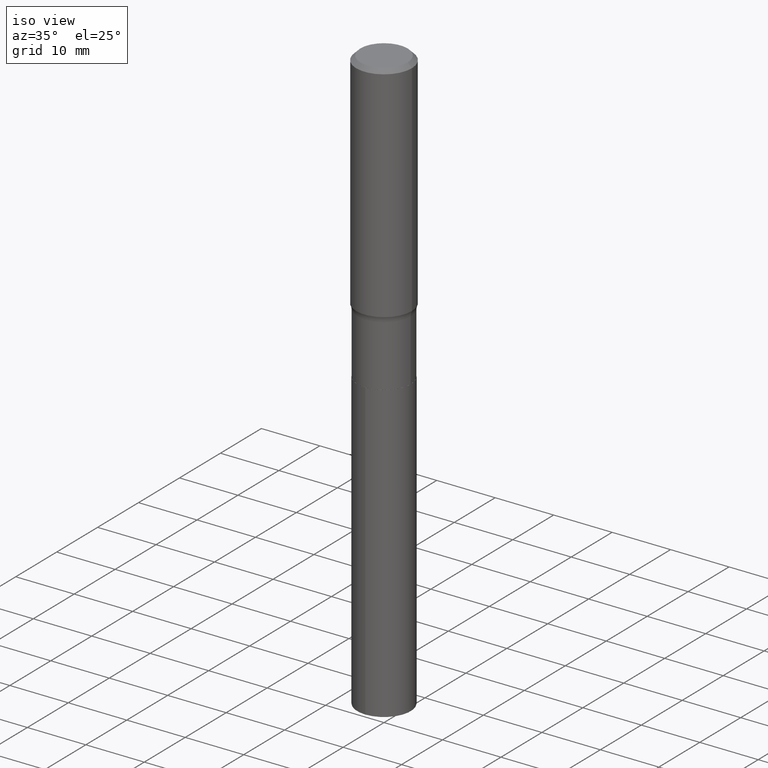
[diagram: clean part render]
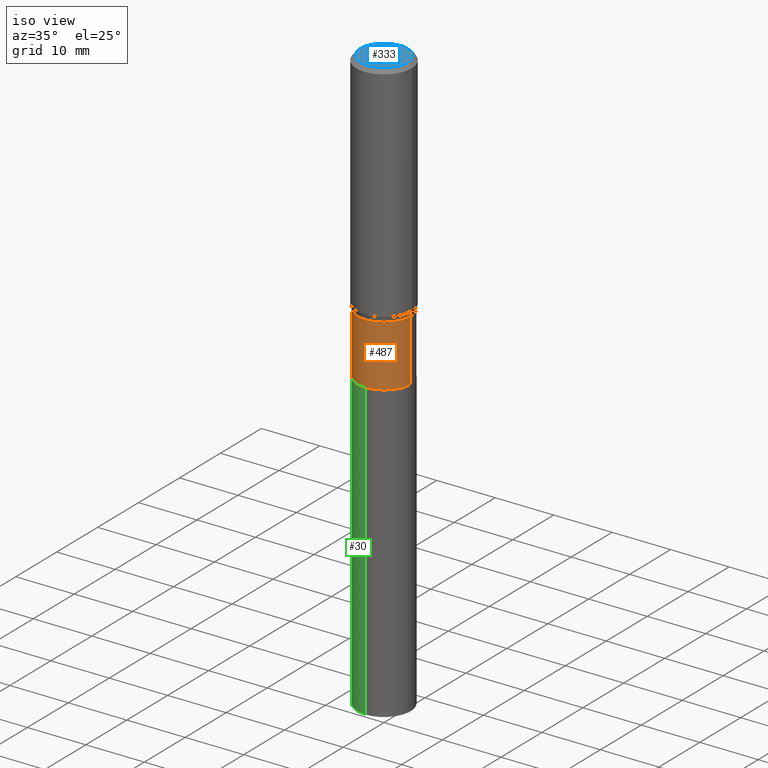
[diagram: same view with three faces highlighted in distinct colors, each labeled with its STEP entity id]
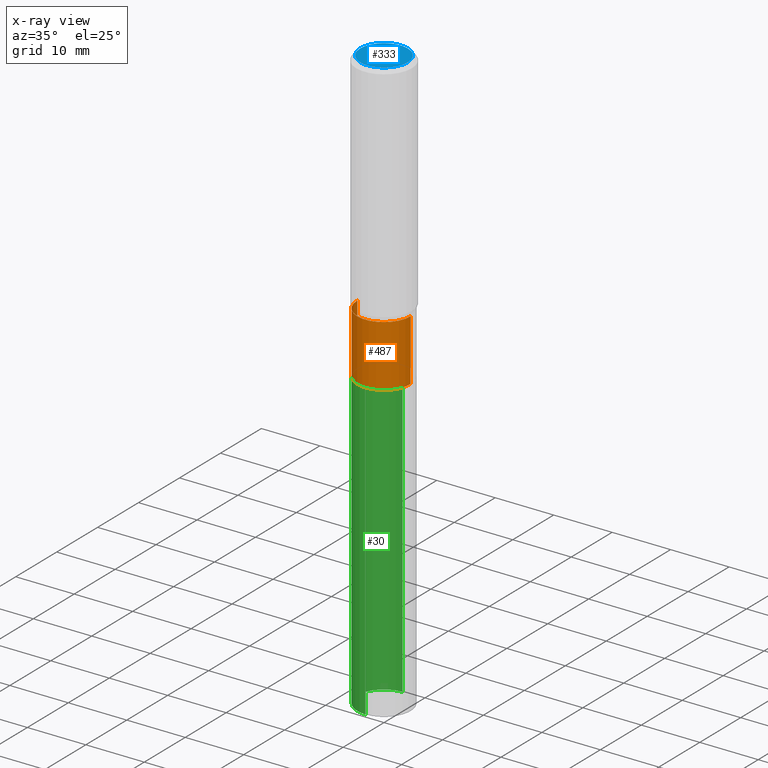
[diagram: x-ray of the same camera — body ghosted, the three highlighted faces saturated]
A machine part, iso view with three faces highlighted in distinct colors.
The next image is the same camera in x-ray (body ghosted, the three faces saturated) — at least one of them is partly hidden behind the body in this view.
Their STEP definitions:

[orange] entity #487 — the highlighted cylindrical surface (edge-blend (fillet) strip) has radius 4.5644 mm, axis along (-0, 0, 1).
#12 = CARTESIAN_POINT ( 'NONE',  ( 3.765777414644491171E-29, -5.376532113684559684E-15, -1.539899999999999824 ) ) ;
#15 = CARTESIAN_POINT ( 'NONE',  ( 0.1796999999999999709, -6.631370506864782203E-15, -1.539899999999999824 ) ) ;
#32 = ORIENTED_EDGE ( 'NONE', *, *, #407, .F. ) ;
#46 = DIRECTION ( 'NONE',  ( 1.000000000000000000, -6.982962677686265922E-15, 4.876176775795935232E-29 ) ) ;
#59 = ORIENTED_EDGE ( 'NONE', *, *, #176, .F. ) ;
#63 = VERTEX_POINT ( 'NONE', #15 ) ;
#85 = CARTESIAN_POINT ( 'NONE',  ( 0.000000000000000000, 0.000000000000000000, 0.000000000000000000 ) ) ;
#86 = CARTESIAN_POINT ( 'NONE',  ( -0.1796999999999999709, -4.820328565860884929E-15, -1.539899999999999824 ) ) ;
#94 = CARTESIAN_POINT ( 'NONE',  ( -0.1796999999999999986, -4.820328565860884929E-15, -1.952699999999999880 ) ) ;
#103 = VECTOR ( 'NONE', #293, 39.37007874015748143 ) ;
#105 = EDGE_CURVE ( 'NONE', #454, #63, #153, .T. ) ;
#120 = DIRECTION ( 'NONE',  ( 1.000000000000000000, -6.982962677686269077E-15, 0.000000000000000000 ) ) ;
#153 = LINE ( 'NONE', #232, #103 ) ;
#176 = EDGE_CURVE ( 'NONE', #446, #368, #257, .T. ) ;
#219 = AXIS2_PLACEMENT_3D ( 'NONE', #12, #464, #120 ) ;
#226 = AXIS2_PLACEMENT_3D ( 'NONE', #391, #278, #387 ) ;
#229 = DIRECTION ( 'NONE',  ( -2.445468806185136877E-29, 3.491481338843145188E-15, 1.000000000000000000 ) ) ;
#232 = CARTESIAN_POINT ( 'NONE',  ( 0.1796999999999999986, -1.254838393180221928E-15, 8.762489666105295644E-30 ) ) ;
#251 = CIRCLE ( 'NONE', #219, 0.1796999999999999709 ) ;
#257 = LINE ( 'NONE', #410, #345 ) ;
#260 = EDGE_LOOP ( 'NONE', ( #59, #287, #332, #32 ) ) ;
#273 = FACE_OUTER_BOUND ( 'NONE', #260, .T. ) ;
#276 = AXIS2_PLACEMENT_3D ( 'NONE', #85, #463, #46 ) ;
#278 = DIRECTION ( 'NONE',  ( -2.445468806185136597E-29, 3.491481338843145583E-15, 1.000000000000000000 ) ) ;
#283 = CIRCLE ( 'NONE', #226, 0.1796999999999999986 ) ;
#287 = ORIENTED_EDGE ( 'NONE', *, *, #481, .T. ) ;
#293 = DIRECTION ( 'NONE',  ( -2.445468806185136877E-29, 3.491481338843145188E-15, 1.000000000000000000 ) ) ;
#332 = ORIENTED_EDGE ( 'NONE', *, *, #105, .T. ) ;
#345 = VECTOR ( 'NONE', #229, 39.37007874015748143 ) ;
#368 = VERTEX_POINT ( 'NONE', #86 ) ;
#387 = DIRECTION ( 'NONE',  ( 1.000000000000000000, -6.982962677686267499E-15, 0.000000000000000000 ) ) ;
#391 = CARTESIAN_POINT ( 'NONE',  ( 4.775266937837715922E-29, -6.817815610359009828E-15, -1.952699999999999880 ) ) ;
#392 = CARTESIAN_POINT ( 'NONE',  ( 0.1796999999999999986, -8.072654003539231558E-15, -1.952699999999999880 ) ) ;
#407 = EDGE_CURVE ( 'NONE', #368, #63, #251, .T. ) ;
#410 = CARTESIAN_POINT ( 'NONE',  ( -0.1796999999999999986, 1.276845296160900024E-15, -8.839326357188065585E-30 ) ) ;
#431 = CYLINDRICAL_SURFACE ( 'NONE', #276, 0.1796999999999999986 ) ;
#446 = VERTEX_POINT ( 'NONE', #94 ) ;
#454 = VERTEX_POINT ( 'NONE', #392 ) ;
#463 = DIRECTION ( 'NONE',  ( -2.445468806185136597E-29, 3.491481338843145583E-15, 1.000000000000000000 ) ) ;
#464 = DIRECTION ( 'NONE',  ( -2.445468806185136597E-29, 3.491481338843145583E-15, 1.000000000000000000 ) ) ;
#481 = EDGE_CURVE ( 'NONE', #446, #454, #283, .T. ) ;
#487 = ADVANCED_FACE ( 'NONE', ( #273 ), #431, .T. ) ;

[blue] entity #333 — the highlighted planar face has unit normal (0, -0, -1).
#20 = FACE_OUTER_BOUND ( 'NONE', #488, .T. ) ;
#21 = DIRECTION ( 'NONE',  ( 1.000000000000000000, -6.982962677686267499E-15, 4.876227444496879000E-29 ) ) ;
#53 = AXIS2_PLACEMENT_3D ( 'NONE', #144, #348, #72 ) ;
#62 = AXIS2_PLACEMENT_3D ( 'NONE', #127, #281, #21 ) ;
#72 = DIRECTION ( 'NONE',  ( 1.000000000000000000, -6.982962677686267499E-15, 4.876227444496879000E-29 ) ) ;
#74 = CIRCLE ( 'NONE', #53, 0.1593749999999999889 ) ;
#95 = CARTESIAN_POINT ( 'NONE',  ( -0.1593749999999999889, 1.162008633083729827E-15, 3.252968060227205293E-18 ) ) ;
#115 = PLANE ( 'NONE',  #274 ) ;
#127 = CARTESIAN_POINT ( 'NONE',  ( -7.955031918821655674E-47, 1.135767727816384611E-32, 3.252968060235159768E-18 ) ) ;
#136 = EDGE_CURVE ( 'NONE', #224, #449, #74, .T. ) ;
#144 = CARTESIAN_POINT ( 'NONE',  ( -7.955031918821655674E-47, 1.135767727816384611E-32, 3.252968060235159768E-18 ) ) ;
#215 = ORIENTED_EDGE ( 'NONE', *, *, #297, .T. ) ;
#224 = VERTEX_POINT ( 'NONE', #95 ) ;
#241 = CARTESIAN_POINT ( 'NONE',  ( 0.1593749999999999889, -1.238966577815981903E-15, 3.252968060243383104E-18 ) ) ;
#265 = DIRECTION ( 'NONE',  ( -1.000000000000000000, 6.982962677686265922E-15, -4.876176775795935793E-29 ) ) ;
#269 = CARTESIAN_POINT ( 'NONE',  ( -3.977515959410827837E-47, 5.678838639081923055E-33, 1.626484030117579884E-18 ) ) ;
#274 = AXIS2_PLACEMENT_3D ( 'NONE', #269, #458, #265 ) ;
#281 = DIRECTION ( 'NONE',  ( -2.445468806185136597E-29, 3.491481338843145583E-15, 1.000000000000000000 ) ) ;
#297 = EDGE_CURVE ( 'NONE', #449, #224, #320, .T. ) ;
#320 = CIRCLE ( 'NONE', #62, 0.1593749999999999889 ) ;
#333 = ADVANCED_FACE ( 'NONE', ( #20 ), #115, .F. ) ;
#348 = DIRECTION ( 'NONE',  ( -2.445468806185136597E-29, 3.491481338843145583E-15, 1.000000000000000000 ) ) ;
#449 = VERTEX_POINT ( 'NONE', #241 ) ;
#458 = DIRECTION ( 'NONE',  ( 2.438088387897960049E-29, -3.491481338843145188E-15, -1.000000000000000000 ) ) ;
#485 = ORIENTED_EDGE ( 'NONE', *, *, #136, .T. ) ;
#488 = EDGE_LOOP ( 'NONE', ( #485, #215 ) ) ;

[green] entity #30 — the highlighted cylindrical surface (edge-blend (fillet) strip) has radius 4.5644 mm, axis along (-0, 0, 1).
#7 = CARTESIAN_POINT ( 'NONE',  ( 1.276845296160996660E-15, 0.1796999999999931708, -1.953200000000000269 ) ) ;
#30 = ADVANCED_FACE ( 'NONE', ( #213 ), #426, .T. ) ;
#31 = ORIENTED_EDGE ( 'NONE', *, *, #436, .T. ) ;
#40 = CARTESIAN_POINT ( 'NONE',  ( 9.643691610776730559E-29, -1.376756428873391378E-14, -3.943340807638446854 ) ) ;
#47 = DIRECTION ( 'NONE',  ( -2.445657071024773621E-29, 3.491211732877416171E-15, 1.000000000000000000 ) ) ;
#50 = CARTESIAN_POINT ( 'NONE',  ( 1.276845296160996068E-15, 0.1796999999999861763, -3.943340807638447298 ) ) ;
#52 = CARTESIAN_POINT ( 'NONE',  ( -1.254838393180125292E-15, -0.1797000000000137376, -3.943340807638445966 ) ) ;
#64 = CIRCLE ( 'NONE', #357, 0.1796999999999999986 ) ;
#65 = ORIENTED_EDGE ( 'NONE', *, *, #474, .F. ) ;
#78 = LINE ( 'NONE', #423, #444 ) ;
#133 = AXIS2_PLACEMENT_3D ( 'NONE', #305, #151, #422 ) ;
#139 = VERTEX_POINT ( 'NONE', #50 ) ;
#142 = ORIENTED_EDGE ( 'NONE', *, *, #442, .T. ) ;
#151 = DIRECTION ( 'NONE',  ( -2.445657071024773621E-29, 3.491211732877416171E-15, 1.000000000000000000 ) ) ;
#155 = DIRECTION ( 'NONE',  ( -2.445657071024773621E-29, 3.491211732877416171E-15, 1.000000000000000000 ) ) ;
#164 = DIRECTION ( 'NONE',  ( -2.445657071024773621E-29, 3.491211732877416171E-15, 1.000000000000000000 ) ) ;
#171 = CIRCLE ( 'NONE', #452, 0.1796999999999999986 ) ;
#195 = LINE ( 'NONE', #275, #373 ) ;
#213 = FACE_OUTER_BOUND ( 'NONE', #286, .T. ) ;
#264 = DIRECTION ( 'NONE',  ( -2.445657071024773621E-29, 3.491211732877416171E-15, 1.000000000000000000 ) ) ;
#275 = CARTESIAN_POINT ( 'NONE',  ( -1.254838393180174201E-15, -0.1797000000000068265, -1.953199999999999159 ) ) ;
#279 = DIRECTION ( 'NONE',  ( -6.982962677686265922E-15, -1.000000000000000000, 3.040454083098790380E-15 ) ) ;
#286 = EDGE_LOOP ( 'NONE', ( #65, #31, #142, #484 ) ) ;
#289 = VERTEX_POINT ( 'NONE', #52 ) ;
#305 = CARTESIAN_POINT ( 'NONE',  ( 4.776489672240808724E-29, -6.819561351028431331E-15, -1.953199999999999825 ) ) ;
#313 = CARTESIAN_POINT ( 'NONE',  ( -1.254838393180174201E-15, -0.1797000000000068265, -1.953199999999999159 ) ) ;
#318 = EDGE_CURVE ( 'NONE', #439, #331, #171, .T. ) ;
#331 = VERTEX_POINT ( 'NONE', #313 ) ;
#341 = DIRECTION ( 'NONE',  ( -6.982962677686265922E-15, -1.000000000000000000, 3.040454083098790380E-15 ) ) ;
#357 = AXIS2_PLACEMENT_3D ( 'NONE', #40, #47, #279 ) ;
#373 = VECTOR ( 'NONE', #155, 39.37007874015748143 ) ;
#422 = DIRECTION ( 'NONE',  ( -6.982962677686265922E-15, -1.000000000000000000, 3.040454083098790380E-15 ) ) ;
#423 = CARTESIAN_POINT ( 'NONE',  ( 1.276845296160947553E-15, 0.1796999999999931708, -1.953200000000000269 ) ) ;
#426 = CYLINDRICAL_SURFACE ( 'NONE', #133, 0.1796999999999999986 ) ;
#429 = CARTESIAN_POINT ( 'NONE',  ( 4.776489672240808724E-29, -6.819561351028431331E-15, -1.953199999999999825 ) ) ;
#436 = EDGE_CURVE ( 'NONE', #139, #289, #64, .T. ) ;
#439 = VERTEX_POINT ( 'NONE', #7 ) ;
#442 = EDGE_CURVE ( 'NONE', #289, #331, #195, .T. ) ;
#444 = VECTOR ( 'NONE', #264, 39.37007874015748143 ) ;
#452 = AXIS2_PLACEMENT_3D ( 'NONE', #429, #164, #341 ) ;
#474 = EDGE_CURVE ( 'NONE', #139, #439, #78, .T. ) ;
#484 = ORIENTED_EDGE ( 'NONE', *, *, #318, .F. ) ;